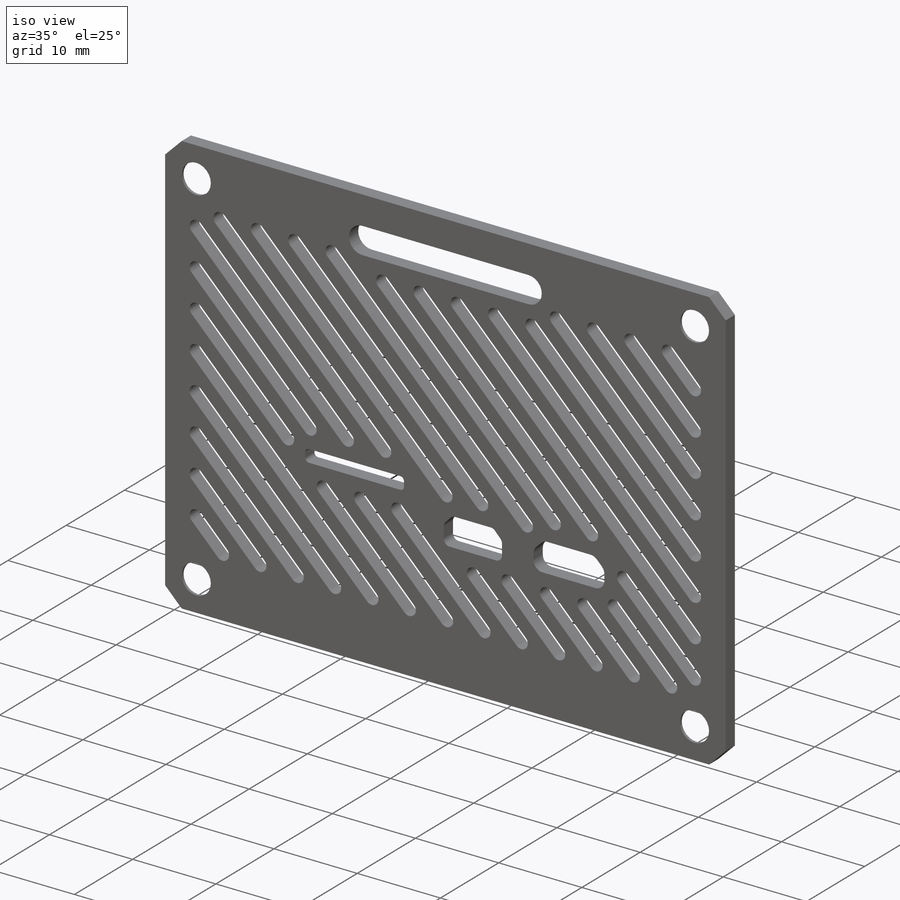
[diagram: iso view]
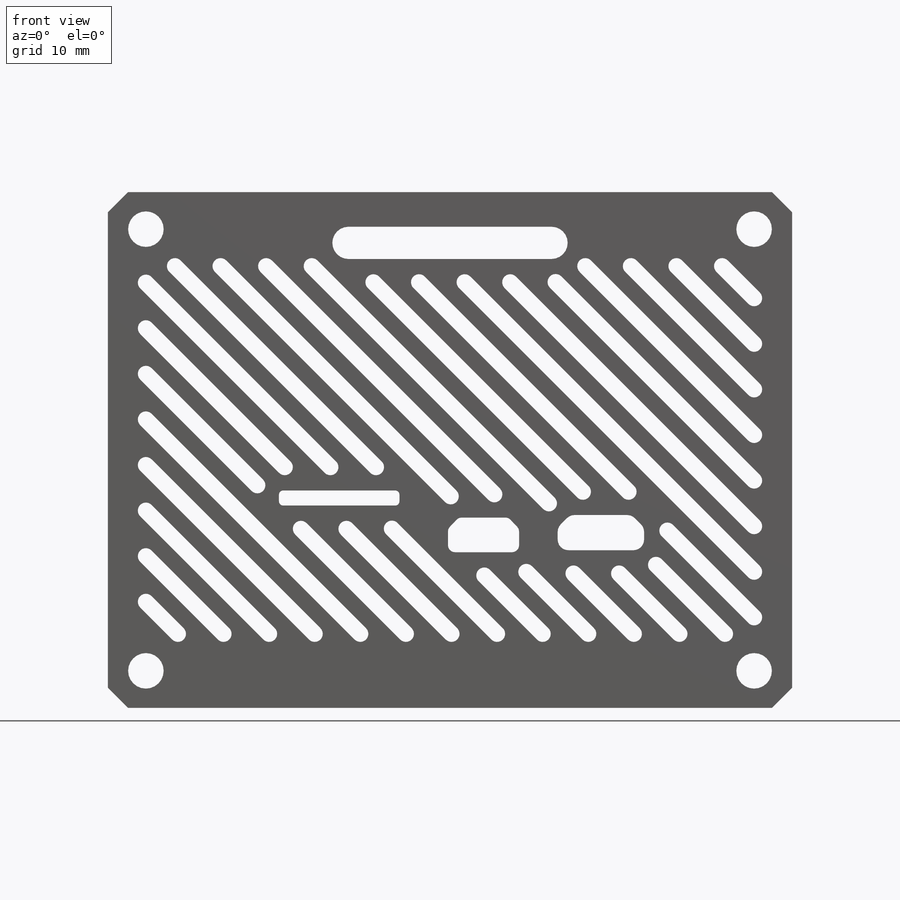
[diagram: front view]
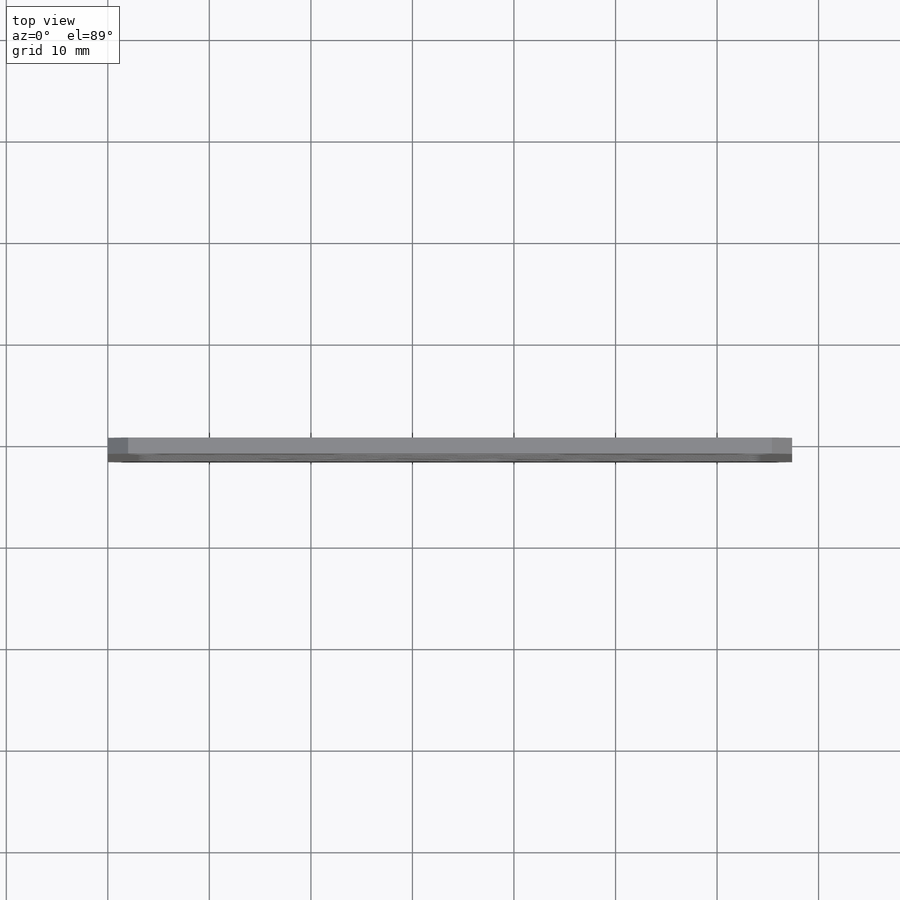
[diagram: top view]
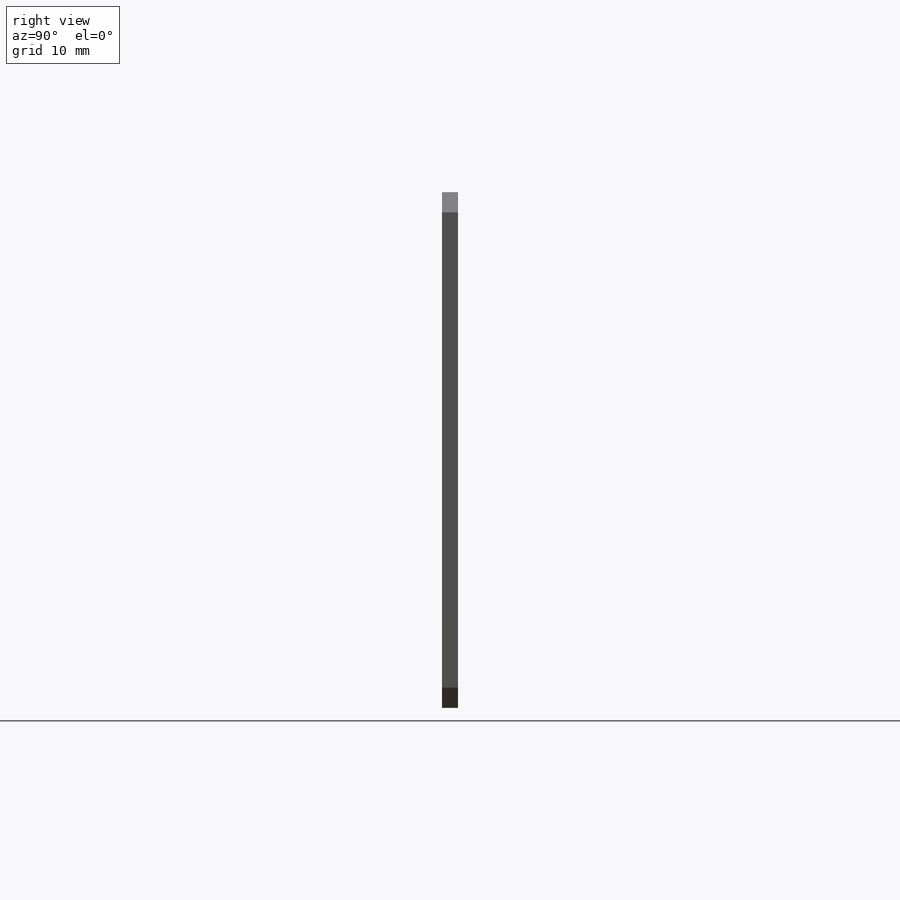
[diagram: right view]
SOLIDWORKS PART (.sldprt)
format: sldprt  version: not decoded by parser v0  size: 681,472 bytes
history: native  units: mm
features: sketch x5, cut_extrude x4, chamfer x2, material x1, extrude x1 (+13 scaffold rows collapsed)
feature tree (26):
  scaffold x13  (default folders/planes/origin — collapsed)
  material  "Material <not specified>"
  sketch  "Sketch1"  dims[D1=67.4mm D2=50.8mm]
  extrude  "Boss-Extrude1"  Depth=1.5875mm
  chamfer  "Chamfer1"  Distance=2mm Angle=45deg
  sketch  "Sketch3"  dims[D1=3.5mm D2=82.0mm D3=43.5mm]
  cut_extrude  "Cut-Extrude2"  [1 undecoded]
  chamfer  "Chamfer2"  Distance=1.27mm Angle=45deg
  sketch  "Sketch5"  dims[D1=1.5875mm D2=20.0mm D3=5.0mm]
  cut_extrude  "Cut-Extrude4"  [1 undecoded]
  sketch  "Sketch6"  dims[c1.D3=0.17mm c1.D4=0.17mm c1.D5=0.17mm c2.D3=11.555mm c2.D4=1.0mm c2.D1=0.254mm c2.D2=0.254mm c3.D4=0.254mm c3.D1=0.508mm c3.D3=0.254mm]
  cut_extrude  "Cut-Extrude5"  [1 undecoded]
  sketch  "Sketch7"  dims[c1.D1=~0.79375mm c1.D2=~5.930715mm c2.D2=45.0deg c2.D3=~2.911498mm c3.D2=~4.808362mm c4.D2=45.0deg c4.D3=3.15mm c4.D4=3.175mm c4.D5=19.6393mm c5.D4=3.175mm c5.D2=~4.490128mm c6.D2=45.0deg c6.D7=3.175mm c6.D8=3.175mm c6.D10=10.3408mm c6.D5=0.0mm c6.D6=1.5mm c6.D9=1.5mm c7.D10=1.5mm c7.D11=1.5mm]
  cut_extrude  "Cut-Extrude6"  [1 undecoded]
decode coverage: 8 of 12 modeling features carry decoded parameters
note: ~ marks probable driven/reference dimensions
note: 4 parameter values undecoded
summary: no parameter record found for 4 features
note: suppression state not decoded; provenance and decode notes live in map.json
